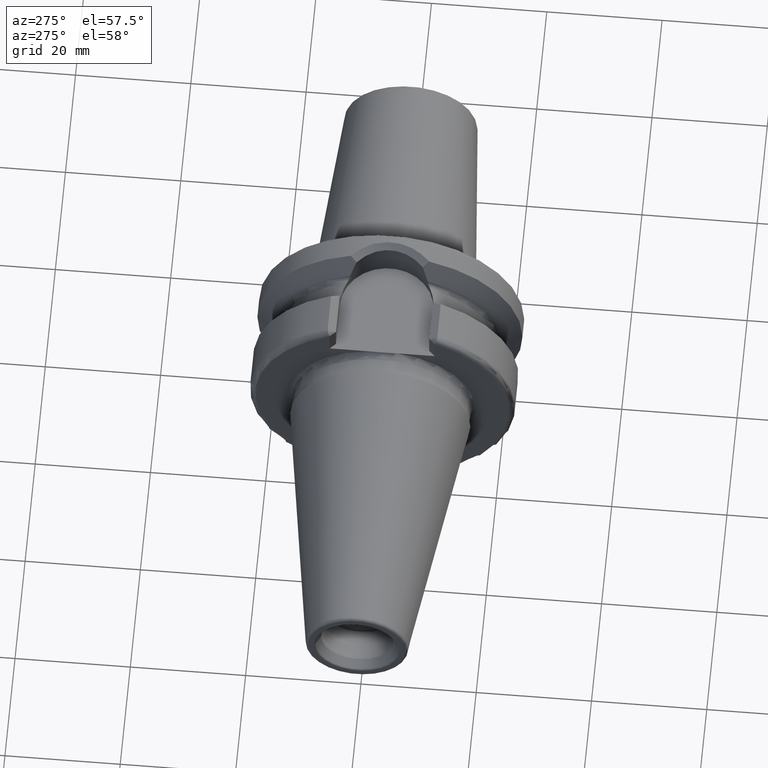
[diagram: clean part render]
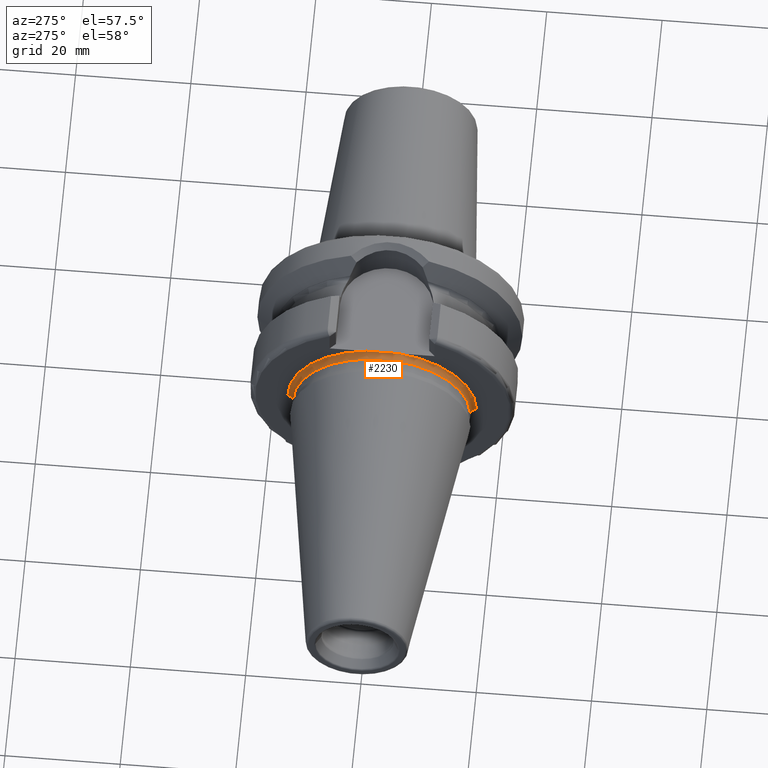
[diagram: same view with one face highlighted and labeled with its STEP entity id]
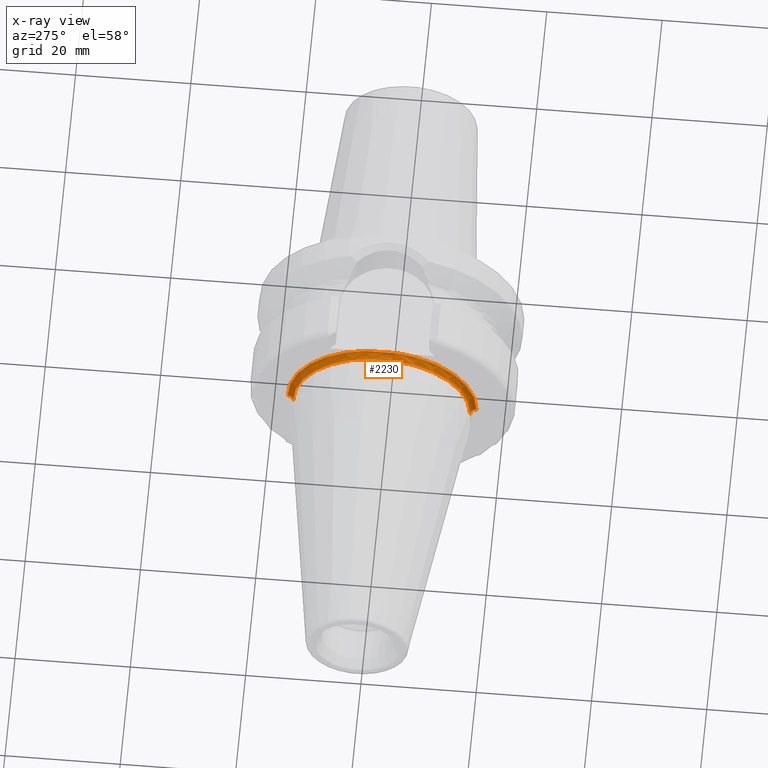
[diagram: x-ray of the same camera — body ghosted, the highlighted face saturated]
A machine part, auxiliary view. The second image highlights one B-rep face of the part: STEP entity #2230.
The next image is the same camera in x-ray: the body ghosted, the highlighted face saturated — about 0% of this face is hidden behind the body in this view.
In plain terms, the highlighted toroidal blend (fillet) surface has major radius 16.375 mm and minor (blend) radius 1 mm.
Its self-contained STEP definition (entity closure, byte-faithful):
#78=CARTESIAN_POINT('',(1.E0,0.E0,0.E0));
#79=DIRECTION('',(1.E0,0.E0,0.E0));
#80=DIRECTION('',(0.E0,1.E0,0.E0));
#81=AXIS2_PLACEMENT_3D('',#78,#79,#80);
#101=CARTESIAN_POINT('',(1.E0,1.6375E1,0.E0));
#102=DIRECTION('',(0.E0,0.E0,-1.E0));
#103=DIRECTION('',(1.E0,0.E0,0.E0));
#104=AXIS2_PLACEMENT_3D('',#101,#102,#103);
#106=CARTESIAN_POINT('',(1.E0,-1.6375E1,0.E0));
#107=DIRECTION('',(0.E0,0.E0,1.E0));
#108=DIRECTION('',(1.E0,0.E0,0.E0));
#109=AXIS2_PLACEMENT_3D('',#106,#107,#108);
#695=CARTESIAN_POINT('',(2.E0,0.E0,0.E0));
#696=DIRECTION('',(1.E0,0.E0,0.E0));
#697=DIRECTION('',(0.E0,1.E0,0.E0));
#698=AXIS2_PLACEMENT_3D('',#695,#696,#697);
#700=CARTESIAN_POINT('',(2.E0,-2.705203319531E0,1.615E1));
#701=CARTESIAN_POINT('',(2.E0,-2.447526606637E0,1.615E1));
#702=CARTESIAN_POINT('',(1.994666808080E0,-1.932209003238E0,1.615E1));
#703=CARTESIAN_POINT('',(1.982373677751E0,-1.159353659083E0,1.615E1));
#704=CARTESIAN_POINT('',(1.974023153496E0,-3.864772813160E-1,1.615E1));
#705=CARTESIAN_POINT('',(1.974022947076E0,3.864455623798E-1,1.615E1));
#706=CARTESIAN_POINT('',(1.982373315251E0,1.159330607264E0,1.615E1));
#707=CARTESIAN_POINT('',(1.994666672292E0,1.932198796230E0,1.615E1));
#708=CARTESIAN_POINT('',(2.E0,2.447523240700E0,1.615E1));
#709=CARTESIAN_POINT('',(2.E0,2.705203319531E0,1.615E1));
#711=CARTESIAN_POINT('',(2.E0,0.E0,0.E0));
#712=DIRECTION('',(1.E0,0.E0,0.E0));
#713=DIRECTION('',(0.E0,-1.652032561545E-1,9.862595419847E-1));
#714=AXIS2_PLACEMENT_3D('',#711,#712,#713);
#1210=CARTESIAN_POINT('',(2.E0,1.6375E1,0.E0));
#1211=CARTESIAN_POINT('',(1.E0,1.5375E1,0.E0));
#1212=VERTEX_POINT('',#1210);
#1213=VERTEX_POINT('',#1211);
#1216=CARTESIAN_POINT('',(2.E0,-1.6375E1,0.E0));
#1217=CARTESIAN_POINT('',(1.E0,-1.5375E1,0.E0));
#1218=VERTEX_POINT('',#1216);
#1219=VERTEX_POINT('',#1217);
#1280=CARTESIAN_POINT('',(2.E0,2.705203319531E0,1.615E1));
#1281=VERTEX_POINT('',#1280);
#1282=CARTESIAN_POINT('',(2.E0,-2.705203319531E0,1.615E1));
#1283=VERTEX_POINT('',#1282);
#2217=CARTESIAN_POINT('',(1.E0,0.E0,0.E0));
#2218=DIRECTION('',(1.E0,0.E0,0.E0));
#2219=DIRECTION('',(0.E0,-1.E0,0.E0));
#2220=AXIS2_PLACEMENT_3D('',#2217,#2218,#2219);
#2221=TOROIDAL_SURFACE('',#2220,1.6375E1,1.E0);
#2222=ORIENTED_EDGE('',*,*,#1543,.T.);
#2223=ORIENTED_EDGE('',*,*,#2195,.F.);
#2224=ORIENTED_EDGE('',*,*,#1561,.T.);
#2225=ORIENTED_EDGE('',*,*,#1521,.T.);
#2226=ORIENTED_EDGE('',*,*,#1490,.F.);
#2227=ORIENTED_EDGE('',*,*,#1518,.F.);
#2228=EDGE_LOOP('',(#2222,#2223,#2224,#2225,#2226,#2227));
#2229=FACE_OUTER_BOUND('',#2228,.F.);
#2230=ADVANCED_FACE('',(#2229),#2221,.F.);
#82=CIRCLE('',#81,1.5375E1);
#105=CIRCLE('',#104,1.E0);
#110=CIRCLE('',#109,1.E0);
#699=CIRCLE('',#698,1.6375E1);
#710=B_SPLINE_CURVE_WITH_KNOTS('',3,(#700,#701,#702,#703,#704,#705,#706,#707,
#708,#709),.UNSPECIFIED.,.F.,.F.,(4,1,1,1,1,1,1,4),(0.E0,1.428571428571E-1,
2.857142857143E-1,4.285714285714E-1,5.714285714286E-1,7.142857142857E-1,
8.571428571429E-1,1.E0),.UNSPECIFIED.);
#715=CIRCLE('',#714,1.6375E1);
#1490=EDGE_CURVE('',#1213,#1219,#82,.T.);
#1518=EDGE_CURVE('',#1212,#1213,#105,.T.);
#1521=EDGE_CURVE('',#1218,#1219,#110,.T.);
#1543=EDGE_CURVE('',#1212,#1281,#699,.T.);
#1561=EDGE_CURVE('',#1283,#1218,#715,.T.);
#2195=EDGE_CURVE('',#1283,#1281,#710,.T.);